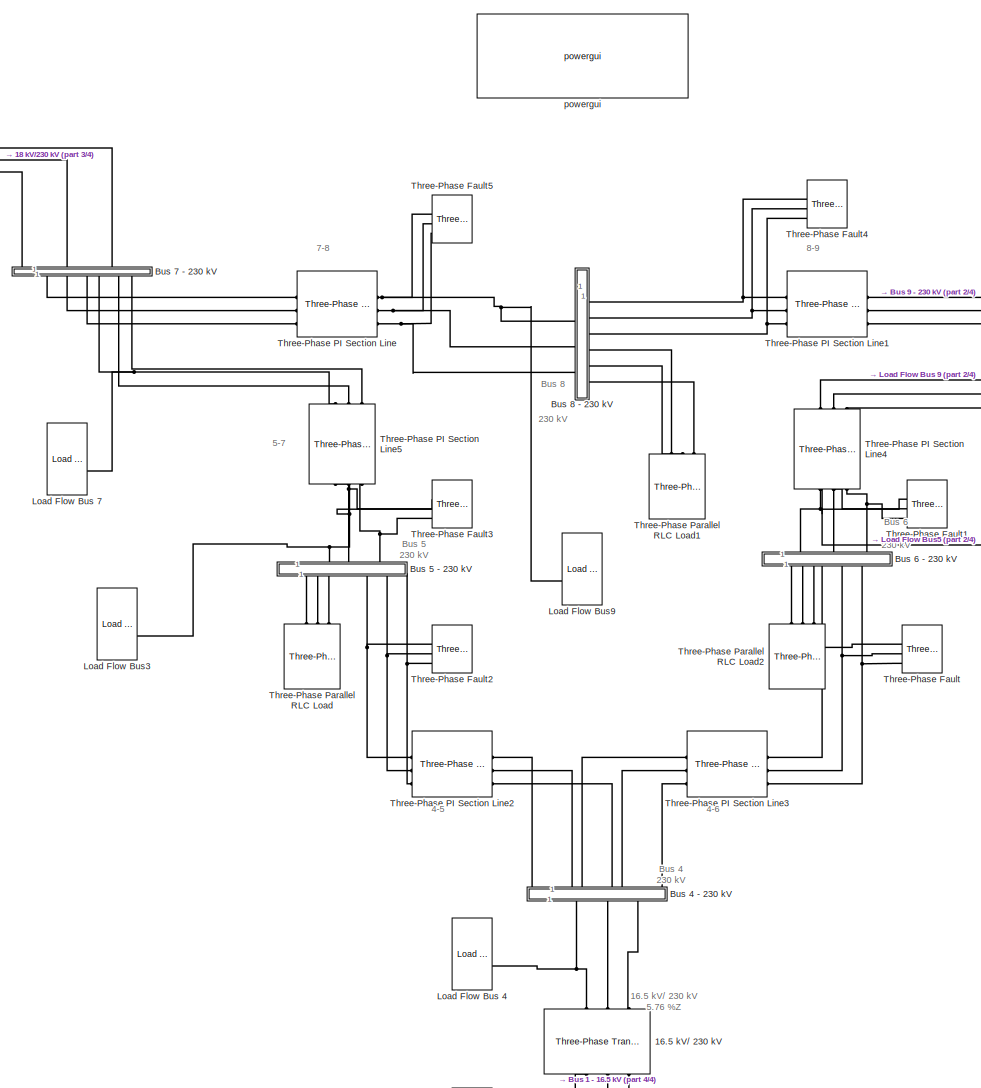
[diagram: root canvas - part 1/4, center side, full height]
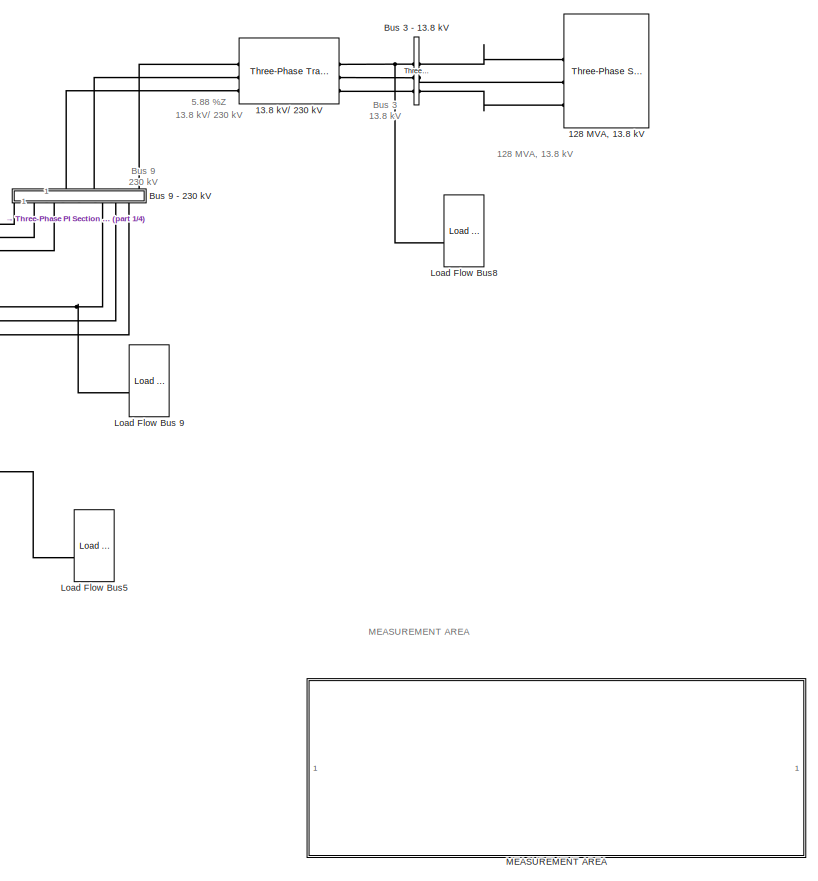
[diagram: root canvas - part 2/4, middle right region]
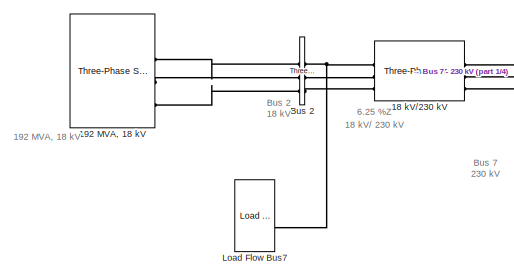
[diagram: root canvas - part 3/4, top left region]
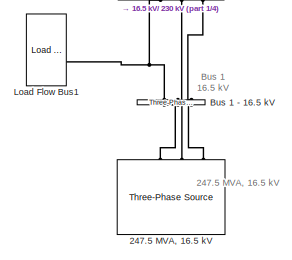
[diagram: root canvas - part 4/4, bottom center region]
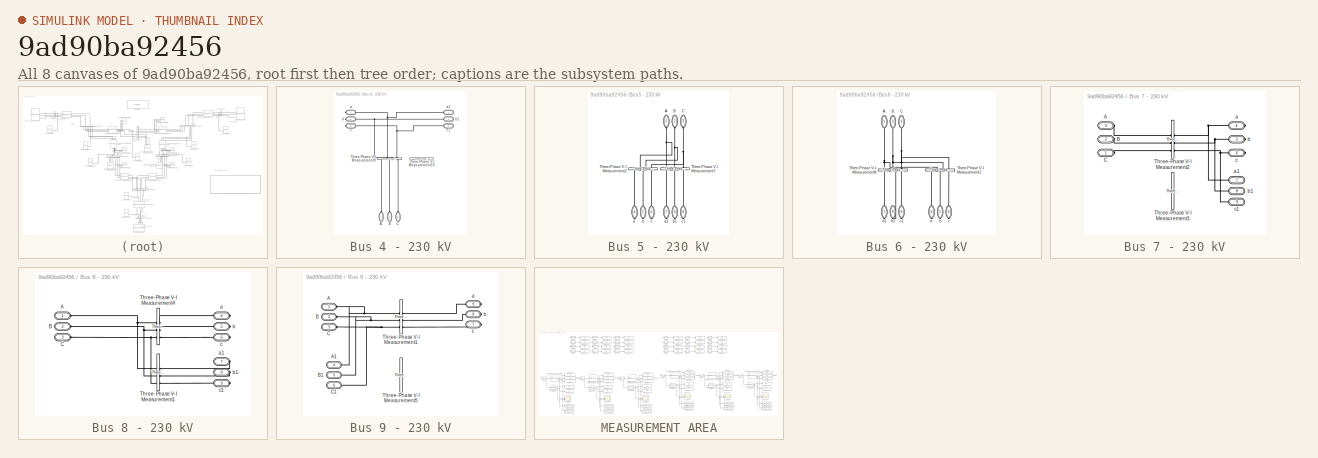
[diagram: thumbnail index - all 8 canvases of the model, root first then tree order]
MODEL slx_9ad90ba92456
KIND model
CONFIG AbsTol = auto
CONFIG EnableMultiTasking = off
CONFIG FixedStep = auto
CONFIG MaxStep = auto
CONFIG MinStep = auto
CONFIG RelTol = 1e-3
CONFIG SampleTimeConstraint = Unconstrained
CONFIG SolverName = VariableStepAuto
CONFIG StartTime = 0.0
CONFIG StopTime = 1
BLOCK [Reference] 128 MVA, 13.8 kV  REF=spsThreePhaseSourceLib/Three-Phase Source
  LibrarySourceBlock = sps_lib/Sources/Three-Phase Source
  SourceBlock = spsThreePhaseSourceLib/Three-Phase Source
  SourceType = Three-Phase Source
BLOCK [Reference] 13.8 kV// 230 kV  REF=spsThreePhaseTransformerTwoWindingsLib/Three-Phase
Transformer
(Two Windings)
  LibrarySourceBlock = sps_lib/Power Grid Elements/Three-Phase\nTransformer\n(Two Windings)
  SourceBlock = spsThreePhaseTransformerTwoWindingsLib/Three-Phase\nTransformer\n(Two Windings)
  SourceType = Three-Phase Transformer (Two Windings)
BLOCK [Reference] 16.5 kV// 230 kV  REF=spsThreePhaseTransformerTwoWindingsLib/Three-Phase
Transformer
(Two Windings)
  LibrarySourceBlock = sps_lib/Power Grid Elements/Three-Phase\nTransformer\n(Two Windings)
  NameLocation = right
  SourceBlock = spsThreePhaseTransformerTwoWindingsLib/Three-Phase\nTransformer\n(Two Windings)
  SourceType = Three-Phase Transformer (Two Windings)
BLOCK [Reference] 18 kV//230 kV  REF=spsThreePhaseTransformerTwoWindingsLib/Three-Phase
Transformer
(Two Windings)
  LibrarySourceBlock = sps_lib/Power Grid Elements/Three-Phase\nTransformer\n(Two Windings)
  SourceBlock = spsThreePhaseTransformerTwoWindingsLib/Three-Phase\nTransformer\n(Two Windings)
  SourceType = Three-Phase Transformer (Two Windings)
BLOCK [Reference] 192 MVA, 18 kV  REF=spsThreePhaseSourceLib/Three-Phase Source
  Description = 60 MVA\n13.8 kV
  LibrarySourceBlock = sps_lib/Sources/Three-Phase Source
  SourceBlock = spsThreePhaseSourceLib/Three-Phase Source
  SourceType = Three-Phase Source
BLOCK [Reference] 247.5 MVA, 16.5 kV  REF=spsThreePhaseSourceLib/Three-Phase Source
  Description = 60 MVA\n13.8 kV
  LibrarySourceBlock = sps_lib/Sources/Three-Phase Source
  NameLocation = right
  SourceBlock = spsThreePhaseSourceLib/Three-Phase Source
  SourceType = Three-Phase Source
BLOCK [Reference] Bus 1 - 16.5 kV  REF=spsThreePhaseVIMeasurementLib/Three-Phase
V-I Measurement
  LibrarySourceBlock = sps_lib/Sensors and Measurements/Three-Phase\nV-I Measurement
  NameLocation = right
  SourceBlock = spsThreePhaseVIMeasurementLib/Three-Phase\nV-I Measurement
  SourceType = Three-Phase VI Measurement
BLOCK [Reference] Bus 2  REF=spsThreePhaseVIMeasurementLib/Three-Phase
V-I Measurement
  LibrarySourceBlock = sps_lib/Sensors and Measurements/Three-Phase\nV-I Measurement
  SourceBlock = spsThreePhaseVIMeasurementLib/Three-Phase\nV-I Measurement
  SourceType = Three-Phase VI Measurement
BLOCK [Reference] Bus 3 - 13.8 kV  REF=spsThreePhaseVIMeasurementLib/Three-Phase
V-I Measurement
  LibrarySourceBlock = sps_lib/Sensors and Measurements/Three-Phase\nV-I Measurement
  SourceBlock = spsThreePhaseVIMeasurementLib/Three-Phase\nV-I Measurement
  SourceType = Three-Phase VI Measurement
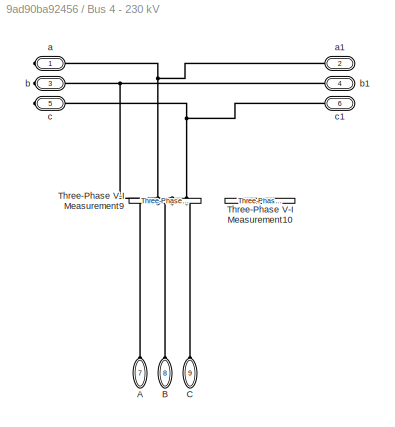
BLOCK [SubSystem] Bus 4 - 230 kV
  NameLocation = right
BLOCK [PMIOPort] Bus 4 - 230 kV/A
  Port = 7
  Side = Left
BLOCK [PMIOPort] Bus 4 - 230 kV/B
  Port = 8
  Side = Left
BLOCK [PMIOPort] Bus 4 - 230 kV/C
  Port = 9
  Side = Left
BLOCK [Reference] Bus 4 - 230 kV/Three-Phase V-I Measurement10  REF=spsThreePhaseVIMeasurementLib/Three-Phase
V-I Measurement
  LibrarySourceBlock = sps_lib/Sensors and Measurements/Three-Phase\nV-I Measurement
  NameLocation = right
  SourceBlock = spsThreePhaseVIMeasurementLib/Three-Phase\nV-I Measurement
  SourceType = Three-Phase VI Measurement
BLOCK [Reference] Bus 4 - 230 kV/Three-Phase V-I Measurement9  REF=spsThreePhaseVIMeasurementLib/Three-Phase
V-I Measurement
  LibrarySourceBlock = sps_lib/Sensors and Measurements/Three-Phase\nV-I Measurement
  NameLocation = right
  SourceBlock = spsThreePhaseVIMeasurementLib/Three-Phase\nV-I Measurement
  SourceType = Three-Phase VI Measurement
BLOCK [PMIOPort] Bus 4 - 230 kV/a
  NameLocation = left
  Side = Right
BLOCK [PMIOPort] Bus 4 - 230 kV/a1
  NameLocation = right
  Port = 2
  Side = Right
BLOCK [PMIOPort] Bus 4 - 230 kV/b
  Port = 3
  Side = Right
BLOCK [PMIOPort] Bus 4 - 230 kV/b1
  Port = 4
  Side = Right
BLOCK [PMIOPort] Bus 4 - 230 kV/c
  NameLocation = left
  Port = 5
  Side = Right
BLOCK [PMIOPort] Bus 4 - 230 kV/c1
  NameLocation = right
  Port = 6
  Side = Right
BLOCK [SubSystem] Bus 5 - 230 kV
  NameLocation = right
BLOCK [PMIOPort] Bus 5 - 230 kV/A
  NameLocation = left
  Side = Left
BLOCK [PMIOPort] Bus 5 - 230 kV/B
  NameLocation = left
  Port = 2
  Side = Left
BLOCK [PMIOPort] Bus 5 - 230 kV/C
  NameLocation = left
  Port = 3
  Side = Left
BLOCK [Reference] Bus 5 - 230 kV/Three-Phase V-I Measurement2  REF=spsThreePhaseVIMeasurementLib/Three-Phase
V-I Measurement
  LibrarySourceBlock = sps_lib/Sensors and Measurements/Three-Phase\nV-I Measurement
  NameLocation = left
  SourceBlock = spsThreePhaseVIMeasurementLib/Three-Phase\nV-I Measurement
  SourceType = Three-Phase VI Measurement
BLOCK [Reference] Bus 5 - 230 kV/Three-Phase V-I Measurement7  REF=spsThreePhaseVIMeasurementLib/Three-Phase
V-I Measurement
  LibrarySourceBlock = sps_lib/Sensors and Measurements/Three-Phase\nV-I Measurement
  NameLocation = left
  SourceBlock = spsThreePhaseVIMeasurementLib/Three-Phase\nV-I Measurement
  SourceType = Three-Phase VI Measurement
BLOCK [PMIOPort] Bus 5 - 230 kV/a
  NameLocation = left
  Port = 4
  Side = Right
BLOCK [PMIOPort] Bus 5 - 230 kV/a1
  NameLocation = left
  Port = 7
  Side = Right
BLOCK [PMIOPort] Bus 5 - 230 kV/b
  NameLocation = left
  Port = 5
  Side = Right
BLOCK [PMIOPort] Bus 5 - 230 kV/b1
  NameLocation = left
  Port = 8
  Side = Right
BLOCK [PMIOPort] Bus 5 - 230 kV/c
  NameLocation = left
  Port = 6
  Side = Right
BLOCK [PMIOPort] Bus 5 - 230 kV/c1
  NameLocation = left
  Port = 9
  Side = Right
BLOCK [SubSystem] Bus 6 - 230 kV
  NameLocation = left
BLOCK [PMIOPort] Bus 6 - 230 kV/A
  NameLocation = left
  Side = Left
BLOCK [PMIOPort] Bus 6 - 230 kV/B
  NameLocation = left
  Port = 2
  Side = Left
BLOCK [PMIOPort] Bus 6 - 230 kV/C
  NameLocation = left
  Port = 3
  Side = Left
BLOCK [Reference] Bus 6 - 230 kV/Three-Phase V-I Measurement1  REF=spsThreePhaseVIMeasurementLib/Three-Phase
V-I Measurement
  LibrarySourceBlock = sps_lib/Sensors and Measurements/Three-Phase\nV-I Measurement
  NameLocation = left
  SourceBlock = spsThreePhaseVIMeasurementLib/Three-Phase\nV-I Measurement
  SourceType = Three-Phase VI Measurement
BLOCK [Reference] Bus 6 - 230 kV/Three-Phase V-I Measurement8  REF=spsThreePhaseVIMeasurementLib/Three-Phase
V-I Measurement
  LibrarySourceBlock = sps_lib/Sensors and Measurements/Three-Phase\nV-I Measurement
  NameLocation = left
  SourceBlock = spsThreePhaseVIMeasurementLib/Three-Phase\nV-I Measurement
  SourceType = Three-Phase VI Measurement
BLOCK [PMIOPort] Bus 6 - 230 kV/a
  NameLocation = left
  Port = 4
  Side = Right
BLOCK [PMIOPort] Bus 6 - 230 kV/a1
  NameLocation = right
  Port = 7
  Side = Right
BLOCK [PMIOPort] Bus 6 - 230 kV/b
  NameLocation = left
  Port = 5
  Side = Right
BLOCK [PMIOPort] Bus 6 - 230 kV/b1
  NameLocation = right
  Port = 8
  Side = Right
BLOCK [PMIOPort] Bus 6 - 230 kV/c
  NameLocation = left
  Port = 6
  Side = Right
BLOCK [PMIOPort] Bus 6 - 230 kV/c1
  NameLocation = right
  Port = 9
  Side = Right
BLOCK [SubSystem] Bus 7 - 230 kV
  NameLocation = left
BLOCK [PMIOPort] Bus 7 - 230 kV/A
  NameLocation = left
  Port = 3
  Side = Left
BLOCK [PMIOPort] Bus 7 - 230 kV/B
  NameLocation = left
  Port = 2
  Side = Left
BLOCK [PMIOPort] Bus 7 - 230 kV/C
  NameLocation = left
  Side = Left
BLOCK [Reference] Bus 7 - 230 kV/Three-Phase V-I Measurement2  REF=spsThreePhaseVIMeasurementLib/Three-Phase
V-I Measurement
  LibrarySourceBlock = sps_lib/Sensors and Measurements/Three-Phase\nV-I Measurement
  SourceBlock = spsThreePhaseVIMeasurementLib/Three-Phase\nV-I Measurement
  SourceType = Three-Phase VI Measurement
BLOCK [Reference] Bus 7 - 230 kV/Three-Phase V-I Measurement3  REF=spsThreePhaseVIMeasurementLib/Three-Phase
V-I Measurement
  LibrarySourceBlock = sps_lib/Sensors and Measurements/Three-Phase\nV-I Measurement
  SourceBlock = spsThreePhaseVIMeasurementLib/Three-Phase\nV-I Measurement
  SourceType = Three-Phase VI Measurement
BLOCK [PMIOPort] Bus 7 - 230 kV/a
  NameLocation = right
  Port = 4
  Side = Right
BLOCK [PMIOPort] Bus 7 - 230 kV/a1
  NameLocation = right
  Port = 7
  Side = Right
BLOCK [PMIOPort] Bus 7 - 230 kV/b
  NameLocation = right
  Port = 5
  Side = Right
BLOCK [PMIOPort] Bus 7 - 230 kV/b1
  NameLocation = right
  Port = 8
  Side = Right
BLOCK [PMIOPort] Bus 7 - 230 kV/c
  NameLocation = right
  Port = 6
  Side = Right
BLOCK [PMIOPort] Bus 7 - 230 kV/c1
  NameLocation = right
  Port = 9
  Side = Right
BLOCK [SubSystem] Bus 8 - 230 kV
BLOCK [PMIOPort] Bus 8 - 230 kV/A
  Side = Left
BLOCK [PMIOPort] Bus 8 - 230 kV/B
  Port = 2
  Side = Left
BLOCK [PMIOPort] Bus 8 - 230 kV/C
  Port = 3
  Side = Left
BLOCK [Reference] Bus 8 - 230 kV/Three-Phase V-I Measurement1  REF=spsThreePhaseVIMeasurementLib/Three-Phase
V-I Measurement
  LibrarySourceBlock = sps_lib/Sensors and Measurements/Three-Phase\nV-I Measurement
  SourceBlock = spsThreePhaseVIMeasurementLib/Three-Phase\nV-I Measurement
  SourceType = Three-Phase VI Measurement
BLOCK [Reference] Bus 8 - 230 kV/Three-Phase V-I Measurement4  REF=spsThreePhaseVIMeasurementLib/Three-Phase
V-I Measurement
  LibrarySourceBlock = sps_lib/Sensors and Measurements/Three-Phase\nV-I Measurement
  SourceBlock = spsThreePhaseVIMeasurementLib/Three-Phase\nV-I Measurement
  SourceType = Three-Phase VI Measurement
BLOCK [PMIOPort] Bus 8 - 230 kV/a
  Port = 4
  Side = Right
BLOCK [PMIOPort] Bus 8 - 230 kV/a1
  Port = 7
  Side = Right
BLOCK [PMIOPort] Bus 8 - 230 kV/b
  Port = 5
  Side = Right
BLOCK [PMIOPort] Bus 8 - 230 kV/b1
  Port = 8
  Side = Right
BLOCK [PMIOPort] Bus 8 - 230 kV/c
  Port = 6
  Side = Right
BLOCK [PMIOPort] Bus 8 - 230 kV/c1
  Port = 9
  Side = Right
BLOCK [SubSystem] Bus 9 - 230 kV
  NameLocation = right
BLOCK [PMIOPort] Bus 9 - 230 kV/A
  NameLocation = left
  Side = Left
BLOCK [PMIOPort] Bus 9 - 230 kV/A1
  NameLocation = left
  Port = 4
  Side = Left
BLOCK [PMIOPort] Bus 9 - 230 kV/B
  NameLocation = left
  Port = 2
  Side = Left
BLOCK [PMIOPort] Bus 9 - 230 kV/B1
  NameLocation = left
  Port = 5
  Side = Left
BLOCK [PMIOPort] Bus 9 - 230 kV/C
  NameLocation = left
  Port = 3
  Side = Left
BLOCK [PMIOPort] Bus 9 - 230 kV/C1
  NameLocation = left
  Port = 6
  Side = Left
BLOCK [Reference] Bus 9 - 230 kV/Three-Phase V-I Measurement1  REF=spsThreePhaseVIMeasurementLib/Three-Phase
V-I Measurement
  LibrarySourceBlock = sps_lib/Sensors and Measurements/Three-Phase\nV-I Measurement
  SourceBlock = spsThreePhaseVIMeasurementLib/Three-Phase\nV-I Measurement
  SourceType = Three-Phase VI Measurement
BLOCK [Reference] Bus 9 - 230 kV/Three-Phase V-I Measurement5  REF=spsThreePhaseVIMeasurementLib/Three-Phase
V-I Measurement
  LibrarySourceBlock = sps_lib/Sensors and Measurements/Three-Phase\nV-I Measurement
  SourceBlock = spsThreePhaseVIMeasurementLib/Three-Phase\nV-I Measurement
  SourceType = Three-Phase VI Measurement
BLOCK [PMIOPort] Bus 9 - 230 kV/a
  NameLocation = right
  Port = 9
  Side = Right
BLOCK [PMIOPort] Bus 9 - 230 kV/b
  NameLocation = right
  Port = 8
  Side = Right
BLOCK [PMIOPort] Bus 9 - 230 kV/c
  NameLocation = right
  Port = 7
  Side = Right
BLOCK [Reference] Load Flow Bus 4  REF=spsLoadFlowBusLib/Load Flow Bus
  AttributesFormatString = %<ID>\n%<Vbase>V\n%<VLF>pu\n%<angleLF>deg.
  LibrarySourceBlock = sps_lib/Utilities/Load Flow Bus
  SourceBlock = spsLoadFlowBusLib/Load Flow Bus
  SourceType = Load Flow Bus
BLOCK [Reference] Load Flow Bus 7  REF=spsLoadFlowBusLib/Load Flow Bus
  AttributesFormatString = %<ID>\n%<Vbase>V\n%<VLF>pu\n%<angleLF>deg.
  LibrarySourceBlock = sps_lib/Utilities/Load Flow Bus
  SourceBlock = spsLoadFlowBusLib/Load Flow Bus
  SourceType = Load Flow Bus
BLOCK [Reference] Load Flow Bus 9  REF=spsLoadFlowBusLib/Load Flow Bus
  AttributesFormatString = %<ID>\n%<Vbase>V\n%<VLF>pu\n%<angleLF>deg.
  LibrarySourceBlock = sps_lib/Utilities/Load Flow Bus
  SourceBlock = spsLoadFlowBusLib/Load Flow Bus
  SourceType = Load Flow Bus
BLOCK [Reference] Load Flow Bus1  REF=spsLoadFlowBusLib/Load Flow Bus
  AttributesFormatString = %<ID>\n%<Vbase>V\n%<VLF>pu\n%<angleLF>deg.
  LibrarySourceBlock = sps_lib/Utilities/Load Flow Bus
  SourceBlock = spsLoadFlowBusLib/Load Flow Bus
  SourceType = Load Flow Bus
BLOCK [Reference] Load Flow Bus3  REF=spsLoadFlowBusLib/Load Flow Bus
  AttributesFormatString = %<ID>\n%<Vbase>V\n%<VLF>pu\n%<angleLF>deg.
  LibrarySourceBlock = sps_lib/Utilities/Load Flow Bus
  SourceBlock = spsLoadFlowBusLib/Load Flow Bus
  SourceType = Load Flow Bus
BLOCK [Reference] Load Flow Bus5  REF=spsLoadFlowBusLib/Load Flow Bus
  AttributesFormatString = %<ID>\n%<Vbase>V\n%<VLF>pu\n%<angleLF>deg.
  LibrarySourceBlock = sps_lib/Utilities/Load Flow Bus
  SourceBlock = spsLoadFlowBusLib/Load Flow Bus
  SourceType = Load Flow Bus
BLOCK [Reference] Load Flow Bus7  REF=spsLoadFlowBusLib/Load Flow Bus
  AttributesFormatString = %<ID>\n%<Vbase>V\n%<VLF>pu\n%<angleLF>deg.
  LibrarySourceBlock = sps_lib/Utilities/Load Flow Bus
  SourceBlock = spsLoadFlowBusLib/Load Flow Bus
  SourceType = Load Flow Bus
BLOCK [Reference] Load Flow Bus8  REF=spsLoadFlowBusLib/Load Flow Bus
  AttributesFormatString = %<ID>\n%<Vbase>V\n%<VLF>pu\n%<angleLF>deg.
  LibrarySourceBlock = sps_lib/Utilities/Load Flow Bus
  SourceBlock = spsLoadFlowBusLib/Load Flow Bus
  SourceType = Load Flow Bus
BLOCK [Reference] Load Flow Bus9  REF=spsLoadFlowBusLib/Load Flow Bus
  AttributesFormatString = %<ID>\n%<Vbase>V\n%<VLF>pu\n%<angleLF>deg.
  LibrarySourceBlock = sps_lib/Utilities/Load Flow Bus
  SourceBlock = spsLoadFlowBusLib/Load Flow Bus
  SourceType = Load Flow Bus
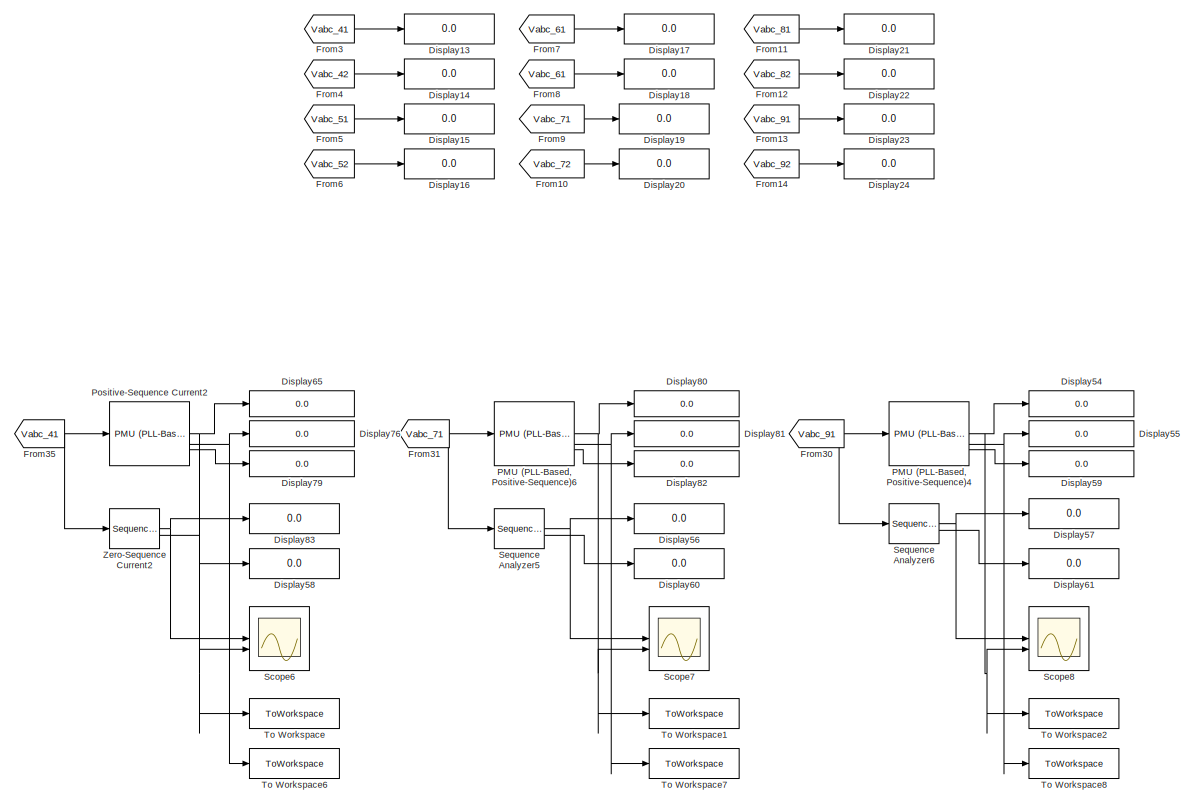
[diagram: MEASUREMENT AREA - part 1/2, left side, full height]
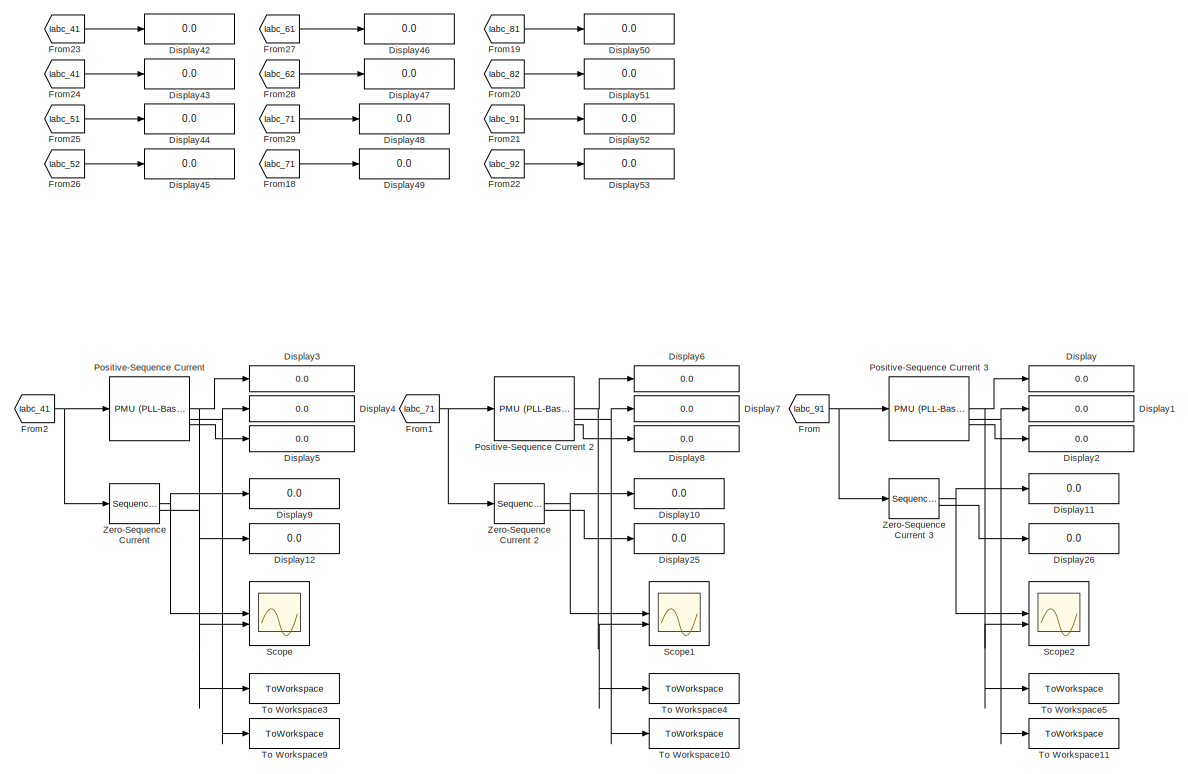
[diagram: MEASUREMENT AREA - part 2/2, right side, full height]
BLOCK [SubSystem] MEASUREMENT AREA
BLOCK [Display] MEASUREMENT AREA/Display
  Decimation = 1
BLOCK [Display] MEASUREMENT AREA/Display1
  Decimation = 1
BLOCK [Display] MEASUREMENT AREA/Display10
  Decimation = 1
BLOCK [Display] MEASUREMENT AREA/Display11
  Decimation = 1
BLOCK [Display] MEASUREMENT AREA/Display12
  Decimation = 1
BLOCK [Display] MEASUREMENT AREA/Display13
  Decimation = 1
BLOCK [Display] MEASUREMENT AREA/Display14
  Decimation = 1
BLOCK [Display] MEASUREMENT AREA/Display15
  Decimation = 1
BLOCK [Display] MEASUREMENT AREA/Display16
  Decimation = 1
BLOCK [Display] MEASUREMENT AREA/Display17
  Decimation = 1
BLOCK [Display] MEASUREMENT AREA/Display18
  Decimation = 1
BLOCK [Display] MEASUREMENT AREA/Display19
  Decimation = 1
BLOCK [Display] MEASUREMENT AREA/Display2
  Decimation = 1
BLOCK [Display] MEASUREMENT AREA/Display20
  Decimation = 1
BLOCK [Display] MEASUREMENT AREA/Display21
  Decimation = 1
BLOCK [Display] MEASUREMENT AREA/Display22
  Decimation = 1
BLOCK [Display] MEASUREMENT AREA/Display23
  Decimation = 1
BLOCK [Display] MEASUREMENT AREA/Display24
  Decimation = 1
BLOCK [Display] MEASUREMENT AREA/Display25
  Decimation = 1
BLOCK [Display] MEASUREMENT AREA/Display26
  Decimation = 1
BLOCK [Display] MEASUREMENT AREA/Display3
  Decimation = 1
BLOCK [Display] MEASUREMENT AREA/Display4
  Decimation = 1
BLOCK [Display] MEASUREMENT AREA/Display42
  Decimation = 1
BLOCK [Display] MEASUREMENT AREA/Display43
  Decimation = 1
BLOCK [Display] MEASUREMENT AREA/Display44
  Decimation = 1
BLOCK [Display] MEASUREMENT AREA/Display45
  Decimation = 1
BLOCK [Display] MEASUREMENT AREA/Display46
  Decimation = 1
BLOCK [Display] MEASUREMENT AREA/Display47
  Decimation = 1
BLOCK [Display] MEASUREMENT AREA/Display48
  Decimation = 1
BLOCK [Display] MEASUREMENT AREA/Display49
  Decimation = 1
BLOCK [Display] MEASUREMENT AREA/Display5
  Decimation = 1
BLOCK [Display] MEASUREMENT AREA/Display50
  Decimation = 1
BLOCK [Display] MEASUREMENT AREA/Display51
  Decimation = 1
BLOCK [Display] MEASUREMENT AREA/Display52
  Decimation = 1
BLOCK [Display] MEASUREMENT AREA/Display53
  Decimation = 1
BLOCK [Display] MEASUREMENT AREA/Display54
  Decimation = 1
BLOCK [Display] MEASUREMENT AREA/Display55
  Decimation = 1
BLOCK [Display] MEASUREMENT AREA/Display56
  Decimation = 1
BLOCK [Display] MEASUREMENT AREA/Display57
  Decimation = 1
BLOCK [Display] MEASUREMENT AREA/Display58
  Decimation = 1
BLOCK [Display] MEASUREMENT AREA/Display59
  Decimation = 1
BLOCK [Display] MEASUREMENT AREA/Display6
  Decimation = 1
BLOCK [Display] MEASUREMENT AREA/Display60
  Decimation = 1
BLOCK [Display] MEASUREMENT AREA/Display61
  Decimation = 1
BLOCK [Display] MEASUREMENT AREA/Display65
  Decimation = 1
BLOCK [Display] MEASUREMENT AREA/Display7
  Decimation = 1
BLOCK [Display] MEASUREMENT AREA/Display76
  Decimation = 1
BLOCK [Display] MEASUREMENT AREA/Display79
  Decimation = 1
BLOCK [Display] MEASUREMENT AREA/Display8
  Decimation = 1
BLOCK [Display] MEASUREMENT AREA/Display80
  Decimation = 1
BLOCK [Display] MEASUREMENT AREA/Display81
  Decimation = 1
BLOCK [Display] MEASUREMENT AREA/Display82
  Decimation = 1
BLOCK [Display] MEASUREMENT AREA/Display83
  Decimation = 1
BLOCK [Display] MEASUREMENT AREA/Display9
  Decimation = 1
BLOCK [From] MEASUREMENT AREA/From
  GotoTag = Iabc_91
  TagVisibility = global
BLOCK [From] MEASUREMENT AREA/From1
  GotoTag = Iabc_71
  TagVisibility = global
BLOCK [From] MEASUREMENT AREA/From10
  GotoTag = Vabc_72
  TagVisibility = global
BLOCK [From] MEASUREMENT AREA/From11
  GotoTag = Vabc_81
  TagVisibility = global
BLOCK [From] MEASUREMENT AREA/From12
  GotoTag = Vabc_82
  TagVisibility = global
BLOCK [From] MEASUREMENT AREA/From13
  GotoTag = Vabc_91
  TagVisibility = global
BLOCK [From] MEASUREMENT AREA/From14
  GotoTag = Vabc_92
  TagVisibility = global
BLOCK [From] MEASUREMENT AREA/From18
  GotoTag = Iabc_71
  TagVisibility = global
BLOCK [From] MEASUREMENT AREA/From19
  GotoTag = Iabc_81
  TagVisibility = global
BLOCK [From] MEASUREMENT AREA/From2
  GotoTag = Iabc_41
  TagVisibility = global
BLOCK [From] MEASUREMENT AREA/From20
  GotoTag = Iabc_82
  TagVisibility = global
BLOCK [From] MEASUREMENT AREA/From21
  GotoTag = Iabc_91
  TagVisibility = global
BLOCK [From] MEASUREMENT AREA/From22
  GotoTag = Iabc_92
  TagVisibility = global
BLOCK [From] MEASUREMENT AREA/From23
  GotoTag = Iabc_41
  TagVisibility = global
BLOCK [From] MEASUREMENT AREA/From24
  GotoTag = Iabc_41
  TagVisibility = global
BLOCK [From] MEASUREMENT AREA/From25
  GotoTag = Iabc_51
  TagVisibility = global
BLOCK [From] MEASUREMENT AREA/From26
  GotoTag = Iabc_52
  TagVisibility = global
BLOCK [From] MEASUREMENT AREA/From27
  GotoTag = Iabc_61
  TagVisibility = global
BLOCK [From] MEASUREMENT AREA/From28
  GotoTag = Iabc_62
  TagVisibility = global
BLOCK [From] MEASUREMENT AREA/From29
  GotoTag = Iabc_71
  TagVisibility = global
BLOCK [From] MEASUREMENT AREA/From3
  GotoTag = Vabc_41
  TagVisibility = global
BLOCK [From] MEASUREMENT AREA/From30
  GotoTag = Vabc_91
  TagVisibility = global
BLOCK [From] MEASUREMENT AREA/From31
  GotoTag = Vabc_71
  TagVisibility = global
BLOCK [From] MEASUREMENT AREA/From35
  GotoTag = Vabc_41
  TagVisibility = global
BLOCK [From] MEASUREMENT AREA/From4
  GotoTag = Vabc_42
  TagVisibility = global
BLOCK [From] MEASUREMENT AREA/From5
  GotoTag = Vabc_51
  TagVisibility = global
BLOCK [From] MEASUREMENT AREA/From6
  GotoTag = Vabc_52
  TagVisibility = global
BLOCK [From] MEASUREMENT AREA/From7
  GotoTag = Vabc_61
  TagVisibility = global
BLOCK [From] MEASUREMENT AREA/From8
  GotoTag = Vabc_61
  TagVisibility = global
BLOCK [From] MEASUREMENT AREA/From9
  GotoTag = Vabc_71
  TagVisibility = global
BLOCK [Reference] MEASUREMENT AREA/PMU (PLL-Based, Positive-Sequence)4  REF=spsPMUPLLBasedPositiveSequenceLib/PMU
(PLL-Based,
Positive-Sequence)
  LibrarySourceBlock = sps_lib/Sensors and Measurements/PMU\n(PLL-Based,\nPositive-Sequence)
  SourceBlock = spsPMUPLLBasedPositiveSequenceLib/PMU\n(PLL-Based,\nPositive-Sequence)
  SourceType = PMU (PLL-Based, Positive-Sequence)
BLOCK [Reference] MEASUREMENT AREA/PMU (PLL-Based, Positive-Sequence)6  REF=spsPMUPLLBasedPositiveSequenceLib/PMU
(PLL-Based,
Positive-Sequence)
  LibrarySourceBlock = sps_lib/Sensors and Measurements/PMU\n(PLL-Based,\nPositive-Sequence)
  SourceBlock = spsPMUPLLBasedPositiveSequenceLib/PMU\n(PLL-Based,\nPositive-Sequence)
  SourceType = PMU (PLL-Based, Positive-Sequence)
BLOCK [Reference] MEASUREMENT AREA/Positive-Sequence Current  REF=spsPMUPLLBasedPositiveSequenceLib/PMU
(PLL-Based,
Positive-Sequence)
  LibrarySourceBlock = sps_lib/Sensors and Measurements/PMU\n(PLL-Based,\nPositive-Sequence)
  SourceBlock = spsPMUPLLBasedPositiveSequenceLib/PMU\n(PLL-Based,\nPositive-Sequence)
  SourceType = PMU (PLL-Based, Positive-Sequence)
BLOCK [Reference] MEASUREMENT AREA/Positive-Sequence Current 2  REF=spsPMUPLLBasedPositiveSequenceLib/PMU
(PLL-Based,
Positive-Sequence)
  LibrarySourceBlock = sps_lib/Sensors and Measurements/PMU\n(PLL-Based,\nPositive-Sequence)
  SourceBlock = spsPMUPLLBasedPositiveSequenceLib/PMU\n(PLL-Based,\nPositive-Sequence)
  SourceType = PMU (PLL-Based, Positive-Sequence)
BLOCK [Reference] MEASUREMENT AREA/Positive-Sequence Current 3  REF=spsPMUPLLBasedPositiveSequenceLib/PMU
(PLL-Based,
Positive-Sequence)
  LibrarySourceBlock = sps_lib/Sensors and Measurements/PMU\n(PLL-Based,\nPositive-Sequence)
  SourceBlock = spsPMUPLLBasedPositiveSequenceLib/PMU\n(PLL-Based,\nPositive-Sequence)
  SourceType = PMU (PLL-Based, Positive-Sequence)
BLOCK [Reference] MEASUREMENT AREA/Positive-Sequence Current2  REF=spsPMUPLLBasedPositiveSequenceLib/PMU
(PLL-Based,
Positive-Sequence)
  LibrarySourceBlock = sps_lib/Sensors and Measurements/PMU\n(PLL-Based,\nPositive-Sequence)
  SourceBlock = spsPMUPLLBasedPositiveSequenceLib/PMU\n(PLL-Based,\nPositive-Sequence)
  SourceType = PMU (PLL-Based, Positive-Sequence)
BLOCK [Scope] MEASUREMENT AREA/Scope
  Floating = off
  NumInputPorts = 2
  ScopeSpecificationString = Simulink.scopes.TimeScopeBlockCfg('CurrentConfiguration', extmgr.ConfigurationSet(extmgr.Configuration('Core','General UI',true,'FigureColor',[1 1 1]),extmgr.Configuration('Core','Source UI',true),extmgr.Configuration('Sources','WiredSimulink',true),extmgr.Configuration('Visuals','Time Domain',true,'SerializedDisplays',{struct('MinYLimReal','-0.125','MaxYLimReal','1.125','YLabelReal','','MinYLimMa...<+1741ch>
BLOCK [Scope] MEASUREMENT AREA/Scope1
  Floating = off
  NumInputPorts = 2
  ScopeSpecificationString = Simulink.scopes.TimeScopeBlockCfg('CurrentConfiguration', extmgr.ConfigurationSet(extmgr.Configuration('Core','General UI',true,'FigureColor',[1 1 1]),extmgr.Configuration('Core','Source UI',true),extmgr.Configuration('Sources','WiredSimulink',true,'DataLoggingVariableName','ScopeData1'),extmgr.Configuration('Visuals','Time Domain',true,'SerializedDisplays',{struct('MinYLimReal','-0.24344','MaxYLi...<+1794ch>
BLOCK [Scope] MEASUREMENT AREA/Scope2
  Floating = off
  NumInputPorts = 2
  ScopeSpecificationString = Simulink.scopes.TimeScopeBlockCfg('CurrentConfiguration', extmgr.ConfigurationSet(extmgr.Configuration('Core','General UI',true,'FigureColor',[1 1 1]),extmgr.Configuration('Core','Source UI',true),extmgr.Configuration('Sources','WiredSimulink',true,'DataLoggingVariableName','ScopeData2'),extmgr.Configuration('Visuals','Time Domain',true,'SerializedDisplays',{struct('MinYLimReal','-0.15899','MaxYLi...<+1796ch>
BLOCK [Scope] MEASUREMENT AREA/Scope6
  Floating = off
  NumInputPorts = 2
  ScopeSpecificationString = Simulink.scopes.TimeScopeBlockCfg('CurrentConfiguration', extmgr.ConfigurationSet(extmgr.Configuration('Core','General UI',true,'FigureColor',[1 1 1]),extmgr.Configuration('Core','Source UI',true),extmgr.Configuration('Sources','WiredSimulink',true,'DataLoggingVariableName','ScopeData8'),extmgr.Configuration('Visuals','Time Domain',true,'SerializedDisplays',{struct('MinYLimReal','-0.125','MaxYLimR...<+1747ch>
BLOCK [Scope] MEASUREMENT AREA/Scope7
  Floating = off
  NumInputPorts = 2
  ScopeSpecificationString = Simulink.scopes.TimeScopeBlockCfg('CurrentConfiguration', extmgr.ConfigurationSet(extmgr.Configuration('Core','General UI',true,'FigureColor',[1 1 1]),extmgr.Configuration('Core','Source UI',true),extmgr.Configuration('Sources','WiredSimulink',true,'DataLoggingVariableName','ScopeData9'),extmgr.Configuration('Visuals','Time Domain',true,'SerializedDisplays',{struct('MinYLimReal','-0.125','MaxYLimR...<+1747ch>
BLOCK [Scope] MEASUREMENT AREA/Scope8
  Floating = off
  NumInputPorts = 2
  ScopeSpecificationString = Simulink.scopes.TimeScopeBlockCfg('CurrentConfiguration', extmgr.ConfigurationSet(extmgr.Configuration('Core','General UI',true,'FigureColor',[1 1 1]),extmgr.Configuration('Core','Source UI',true),extmgr.Configuration('Sources','WiredSimulink',true,'DataLoggingVariableName','ScopeData10'),extmgr.Configuration('Visuals','Time Domain',true,'SerializedDisplays',{struct('MinYLimReal','-0.125','MaxYLim...<+1748ch>
BLOCK [Reference] MEASUREMENT AREA/Sequence Analyzer5  REF=spsSequenceAnalyzerLib/Sequence Analyzer
  LibrarySourceBlock = sps_lib/Sensors and Measurements/Sequence Analyzer
  SourceBlock = spsSequenceAnalyzerLib/Sequence Analyzer
  SourceType = Sequence Analyzer
BLOCK [Reference] MEASUREMENT AREA/Sequence Analyzer6  REF=spsSequenceAnalyzerLib/Sequence Analyzer
  LibrarySourceBlock = sps_lib/Sensors and Measurements/Sequence Analyzer
  SourceBlock = spsSequenceAnalyzerLib/Sequence Analyzer
  SourceType = Sequence Analyzer
BLOCK [ToWorkspace] MEASUREMENT AREA/To Workspace
  Decimation = 3
  FixptAsFi = on
  MaxDataPoints = inf
  SampleTime = 0.1
  SaveFormat = Timeseries
  VariableName = Vmag4
BLOCK [ToWorkspace] MEASUREMENT AREA/To Workspace1
  Decimation = 3
  FixptAsFi = on
  MaxDataPoints = inf
  SampleTime = 0.1
  SaveFormat = Timeseries
  VariableName = Vmag7
BLOCK [ToWorkspace] MEASUREMENT AREA/To Workspace10
  Decimation = 3
  FixptAsFi = on
  MaxDataPoints = inf
  SampleTime = 0.1
  SaveFormat = Timeseries
  VariableName = Iang7
BLOCK [ToWorkspace] MEASUREMENT AREA/To Workspace11
  Decimation = 3
  FixptAsFi = on
  MaxDataPoints = inf
  SampleTime = 0.1
  SaveFormat = Timeseries
  VariableName = Iang9
BLOCK [ToWorkspace] MEASUREMENT AREA/To Workspace2
  Decimation = 3
  FixptAsFi = on
  MaxDataPoints = inf
  SampleTime = 0.1
  SaveFormat = Timeseries
  VariableName = Vmag9
BLOCK [ToWorkspace] MEASUREMENT AREA/To Workspace3
  Decimation = 3
  FixptAsFi = on
  MaxDataPoints = inf
  SampleTime = 0.1
  SaveFormat = Timeseries
  VariableName = Imag4
BLOCK [ToWorkspace] MEASUREMENT AREA/To Workspace4
  Decimation = 3
  FixptAsFi = on
  MaxDataPoints = inf
  SampleTime = 0.1
  SaveFormat = Timeseries
  VariableName = Imag7
BLOCK [ToWorkspace] MEASUREMENT AREA/To Workspace5
  Decimation = 3
  FixptAsFi = on
  MaxDataPoints = inf
  SampleTime = 0.1
  SaveFormat = Timeseries
  VariableName = Imag9
BLOCK [ToWorkspace] MEASUREMENT AREA/To Workspace6
  Decimation = 3
  FixptAsFi = on
  MaxDataPoints = inf
  SampleTime = 0.1
  SaveFormat = Timeseries
  VariableName = Vang4
BLOCK [ToWorkspace] MEASUREMENT AREA/To Workspace7
  Decimation = 3
  FixptAsFi = on
  MaxDataPoints = inf
  SampleTime = 0.1
  SaveFormat = Timeseries
  VariableName = Vang7
BLOCK [ToWorkspace] MEASUREMENT AREA/To Workspace8
  Decimation = 3
  FixptAsFi = on
  MaxDataPoints = inf
  SampleTime = 0.1
  SaveFormat = Timeseries
  VariableName = Vang9
BLOCK [ToWorkspace] MEASUREMENT AREA/To Workspace9
  Decimation = 3
  FixptAsFi = on
  MaxDataPoints = inf
  SampleTime = 0.1
  SaveFormat = Timeseries
  VariableName = Iang4
BLOCK [Reference] MEASUREMENT AREA/Zero-Sequence Current  REF=spsSequenceAnalyzerLib/Sequence Analyzer
  LibrarySourceBlock = sps_lib/Sensors and Measurements/Sequence Analyzer
  SourceBlock = spsSequenceAnalyzerLib/Sequence Analyzer
  SourceType = Sequence Analyzer
BLOCK [Reference] MEASUREMENT AREA/Zero-Sequence Current 2  REF=spsSequenceAnalyzerLib/Sequence Analyzer
  LibrarySourceBlock = sps_lib/Sensors and Measurements/Sequence Analyzer
  SourceBlock = spsSequenceAnalyzerLib/Sequence Analyzer
  SourceType = Sequence Analyzer
BLOCK [Reference] MEASUREMENT AREA/Zero-Sequence Current 3  REF=spsSequenceAnalyzerLib/Sequence Analyzer
  LibrarySourceBlock = sps_lib/Sensors and Measurements/Sequence Analyzer
  SourceBlock = spsSequenceAnalyzerLib/Sequence Analyzer
  SourceType = Sequence Analyzer
BLOCK [Reference] MEASUREMENT AREA/Zero-Sequence Current2  REF=spsSequenceAnalyzerLib/Sequence Analyzer
  LibrarySourceBlock = sps_lib/Sensors and Measurements/Sequence Analyzer
  SourceBlock = spsSequenceAnalyzerLib/Sequence Analyzer
  SourceType = Sequence Analyzer
BLOCK [Reference] Three-Phase Fault  REF=spsThreePhaseFaultLib/Three-Phase Fault
  Commented = on
  LibrarySourceBlock = sps_lib/Power Grid Elements/Three-Phase Fault
  SourceBlock = spsThreePhaseFaultLib/Three-Phase Fault
  SourceType = Three-Phase Fault
BLOCK [Reference] Three-Phase Fault1  REF=spsThreePhaseFaultLib/Three-Phase Fault
  Commented = on
  LibrarySourceBlock = sps_lib/Power Grid Elements/Three-Phase Fault
  SourceBlock = spsThreePhaseFaultLib/Three-Phase Fault
  SourceType = Three-Phase Fault
BLOCK [Reference] Three-Phase Fault2  REF=spsThreePhaseFaultLib/Three-Phase Fault
  Commented = on
  LibrarySourceBlock = sps_lib/Power Grid Elements/Three-Phase Fault
  SourceBlock = spsThreePhaseFaultLib/Three-Phase Fault
  SourceType = Three-Phase Fault
BLOCK [Reference] Three-Phase Fault3  REF=spsThreePhaseFaultLib/Three-Phase Fault
  Commented = on
  LibrarySourceBlock = sps_lib/Power Grid Elements/Three-Phase Fault
  SourceBlock = spsThreePhaseFaultLib/Three-Phase Fault
  SourceType = Three-Phase Fault
BLOCK [Reference] Three-Phase Fault4  REF=spsThreePhaseFaultLib/Three-Phase Fault
  Commented = on
  LibrarySourceBlock = sps_lib/Power Grid Elements/Three-Phase Fault
  SourceBlock = spsThreePhaseFaultLib/Three-Phase Fault
  SourceType = Three-Phase Fault
BLOCK [Reference] Three-Phase Fault5  REF=spsThreePhaseFaultLib/Three-Phase Fault
  LibrarySourceBlock = sps_lib/Power Grid Elements/Three-Phase Fault
  SourceBlock = spsThreePhaseFaultLib/Three-Phase Fault
  SourceType = Three-Phase Fault
BLOCK [Reference] Three-Phase PI Section Line  REF=spsThreePhasePISectionLineLib/Three-Phase
PI Section Line
  AttributesFormatString = \n
  LibrarySourceBlock = sps_lib/Power Grid Elements/Three-Phase\nPI Section Line
  SourceBlock = spsThreePhasePISectionLineLib/Three-Phase\nPI Section Line
  SourceType = Three-Phase PI Section Line
BLOCK [Reference] Three-Phase PI Section Line1  REF=spsThreePhasePISectionLineLib/Three-Phase
PI Section Line
  AttributesFormatString = \n
  LibrarySourceBlock = sps_lib/Power Grid Elements/Three-Phase\nPI Section Line
  SourceBlock = spsThreePhasePISectionLineLib/Three-Phase\nPI Section Line
  SourceType = Three-Phase PI Section Line
BLOCK [Reference] Three-Phase PI Section Line2  REF=spsThreePhasePISectionLineLib/Three-Phase
PI Section Line
  AttributesFormatString = \n
  LibrarySourceBlock = sps_lib/Power Grid Elements/Three-Phase\nPI Section Line
  SourceBlock = spsThreePhasePISectionLineLib/Three-Phase\nPI Section Line
  SourceType = Three-Phase PI Section Line
BLOCK [Reference] Three-Phase PI Section Line3  REF=spsThreePhasePISectionLineLib/Three-Phase
PI Section Line
  AttributesFormatString = \n
  LibrarySourceBlock = sps_lib/Power Grid Elements/Three-Phase\nPI Section Line
  SourceBlock = spsThreePhasePISectionLineLib/Three-Phase\nPI Section Line
  SourceType = Three-Phase PI Section Line
BLOCK [Reference] Three-Phase PI Section Line4  REF=spsThreePhasePISectionLineLib/Three-Phase
PI Section Line
  AttributesFormatString = \n
  LibrarySourceBlock = sps_lib/Power Grid Elements/Three-Phase\nPI Section Line
  NameLocation = left
  SourceBlock = spsThreePhasePISectionLineLib/Three-Phase\nPI Section Line
  SourceType = Three-Phase PI Section Line
BLOCK [Reference] Three-Phase PI Section Line5  REF=spsThreePhasePISectionLineLib/Three-Phase
PI Section Line
  AttributesFormatString = \n
  LibrarySourceBlock = sps_lib/Power Grid Elements/Three-Phase\nPI Section Line
  NameLocation = right
  SourceBlock = spsThreePhasePISectionLineLib/Three-Phase\nPI Section Line
  SourceType = Three-Phase PI Section Line
BLOCK [Reference] Three-Phase Parallel RLC Load  REF=spsThreePhaseParallelRLCLoadLib/Three-Phase
Parallel RLC Load
  AttributesFormatString = \n
  LibrarySourceBlock = sps_lib/Passives/Three-Phase\nParallel RLC Load
  SourceBlock = spsThreePhaseParallelRLCLoadLib/Three-Phase\nParallel RLC Load
  SourceType = Three-Phase Parallel RLC Load
BLOCK [Reference] Three-Phase Parallel RLC Load1  REF=spsThreePhaseParallelRLCLoadLib/Three-Phase
Parallel RLC Load
  AttributesFormatString = \n
  LibrarySourceBlock = sps_lib/Passives/Three-Phase\nParallel RLC Load
  SourceBlock = spsThreePhaseParallelRLCLoadLib/Three-Phase\nParallel RLC Load
  SourceType = Three-Phase Parallel RLC Load
BLOCK [Reference] Three-Phase Parallel RLC Load2  REF=spsThreePhaseParallelRLCLoadLib/Three-Phase
Parallel RLC Load
  AttributesFormatString = \n
  LibrarySourceBlock = sps_lib/Passives/Three-Phase\nParallel RLC Load
  SourceBlock = spsThreePhaseParallelRLCLoadLib/Three-Phase\nParallel RLC Load
  SourceType = Three-Phase Parallel RLC Load
BLOCK [Reference] powergui  REF=sps_lib/powergui
  LibrarySourceBlock = sps_lib/powergui
  Priority = 1
  SourceBlock = sps_lib/powergui
  SourceType = PSB option menu block
ANNOTATION (root): MEASUREMENT AREA
ANNOTATION (root): 13.8 kV/ 230 kV 5.88 %Z
ANNOTATION (root): 16.5 kV/ 230 kV 5.76 %Z
ANNOTATION (root): 18 kV/ 230 kV 6.25 %Z
ANNOTATION (root): Bus 1 16.5 kV
ANNOTATION (root): Bus 2 18 kV
ANNOTATION (root): Bus 3 13.8 kV
ANNOTATION (root): Bus 4 230 kV
ANNOTATION (root): Bus 5 230 kV
ANNOTATION (root): Bus 6 230 kV
ANNOTATION (root): Bus 7 230 kV
ANNOTATION (root): Bus 8 230 kV
ANNOTATION (root): Bus 9 230 kV
ANNOTATION (root): 128 MVA, 13.8 kV
ANNOTATION (root): 192 MVA, 18 kV
ANNOTATION (root): 247.5 MVA, 16.5 kV
ANNOTATION (root): 4-5
ANNOTATION (root): 4-6
ANNOTATION (root): 5-7
ANNOTATION (root): 7-8
ANNOTATION (root): 8-9
LINE MEASUREMENT AREA/From10:1 -> MEASUREMENT AREA/Display20:1
LINE MEASUREMENT AREA/From11:1 -> MEASUREMENT AREA/Display21:1
LINE MEASUREMENT AREA/From12:1 -> MEASUREMENT AREA/Display22:1
LINE MEASUREMENT AREA/From13:1 -> MEASUREMENT AREA/Display23:1
LINE MEASUREMENT AREA/From14:1 -> MEASUREMENT AREA/Display24:1
LINE MEASUREMENT AREA/From18:1 -> MEASUREMENT AREA/Display49:1
LINE MEASUREMENT AREA/From19:1 -> MEASUREMENT AREA/Display50:1
NET MEASUREMENT AREA/From1:1 -> MEASUREMENT AREA/Positive-Sequence Current 2:1, MEASUREMENT AREA/Zero-Sequence Current 2:1
LINE MEASUREMENT AREA/From20:1 -> MEASUREMENT AREA/Display51:1
LINE MEASUREMENT AREA/From21:1 -> MEASUREMENT AREA/Display52:1
LINE MEASUREMENT AREA/From22:1 -> MEASUREMENT AREA/Display53:1
LINE MEASUREMENT AREA/From23:1 -> MEASUREMENT AREA/Display42:1
LINE MEASUREMENT AREA/From24:1 -> MEASUREMENT AREA/Display43:1
LINE MEASUREMENT AREA/From25:1 -> MEASUREMENT AREA/Display44:1
LINE MEASUREMENT AREA/From26:1 -> MEASUREMENT AREA/Display45:1
LINE MEASUREMENT AREA/From27:1 -> MEASUREMENT AREA/Display46:1
LINE MEASUREMENT AREA/From28:1 -> MEASUREMENT AREA/Display47:1
LINE MEASUREMENT AREA/From29:1 -> MEASUREMENT AREA/Display48:1
NET MEASUREMENT AREA/From2:1 -> MEASUREMENT AREA/Positive-Sequence Current:1, MEASUREMENT AREA/Zero-Sequence Current:1
NET MEASUREMENT AREA/From30:1 -> MEASUREMENT AREA/PMU (PLL-Based, Positive-Sequence)4:1, MEASUREMENT AREA/Sequence Analyzer6:1
NET MEASUREMENT AREA/From31:1 -> MEASUREMENT AREA/PMU (PLL-Based, Positive-Sequence)6:1, MEASUREMENT AREA/Sequence Analyzer5:1
NET MEASUREMENT AREA/From35:1 -> MEASUREMENT AREA/Positive-Sequence Current2:1, MEASUREMENT AREA/Zero-Sequence Current2:1
LINE MEASUREMENT AREA/From3:1 -> MEASUREMENT AREA/Display13:1
LINE MEASUREMENT AREA/From4:1 -> MEASUREMENT AREA/Display14:1
LINE MEASUREMENT AREA/From5:1 -> MEASUREMENT AREA/Display15:1
LINE MEASUREMENT AREA/From6:1 -> MEASUREMENT AREA/Display16:1
LINE MEASUREMENT AREA/From7:1 -> MEASUREMENT AREA/Display17:1
LINE MEASUREMENT AREA/From8:1 -> MEASUREMENT AREA/Display18:1
LINE MEASUREMENT AREA/From9:1 -> MEASUREMENT AREA/Display19:1
NET MEASUREMENT AREA/From:1 -> MEASUREMENT AREA/Positive-Sequence Current 3:1, MEASUREMENT AREA/Zero-Sequence Current 3:1
NET MEASUREMENT AREA/PMU (PLL-Based, Positive-Sequence)4:1 -> MEASUREMENT AREA/Display54:1, MEASUREMENT AREA/Scope8:2, MEASUREMENT AREA/To Workspace2:1
NET MEASUREMENT AREA/PMU (PLL-Based, Positive-Sequence)4:2 -> MEASUREMENT AREA/Display55:1, MEASUREMENT AREA/To Workspace8:1
LINE MEASUREMENT AREA/PMU (PLL-Based, Positive-Sequence)4:3 -> MEASUREMENT AREA/Display59:1
NET MEASUREMENT AREA/PMU (PLL-Based, Positive-Sequence)6:1 -> MEASUREMENT AREA/Display80:1, MEASUREMENT AREA/Scope7:2, MEASUREMENT AREA/To Workspace1:1
NET MEASUREMENT AREA/PMU (PLL-Based, Positive-Sequence)6:2 -> MEASUREMENT AREA/Display81:1, MEASUREMENT AREA/To Workspace7:1
LINE MEASUREMENT AREA/PMU (PLL-Based, Positive-Sequence)6:3 -> MEASUREMENT AREA/Display82:1
NET MEASUREMENT AREA/Positive-Sequence Current 2:1 -> MEASUREMENT AREA/Display6:1, MEASUREMENT AREA/Scope1:2, MEASUREMENT AREA/To Workspace4:1
NET MEASUREMENT AREA/Positive-Sequence Current 2:2 -> MEASUREMENT AREA/Display7:1, MEASUREMENT AREA/To Workspace10:1
LINE MEASUREMENT AREA/Positive-Sequence Current 2:3 -> MEASUREMENT AREA/Display8:1
NET MEASUREMENT AREA/Positive-Sequence Current 3:1 -> MEASUREMENT AREA/Display:1, MEASUREMENT AREA/Scope2:2, MEASUREMENT AREA/To Workspace5:1
NET MEASUREMENT AREA/Positive-Sequence Current 3:2 -> MEASUREMENT AREA/Display1:1, MEASUREMENT AREA/To Workspace11:1
LINE MEASUREMENT AREA/Positive-Sequence Current 3:3 -> MEASUREMENT AREA/Display2:1
NET MEASUREMENT AREA/Positive-Sequence Current2:1 -> MEASUREMENT AREA/Display65:1, MEASUREMENT AREA/Scope6:2, MEASUREMENT AREA/To Workspace:1
NET MEASUREMENT AREA/Positive-Sequence Current2:2 -> MEASUREMENT AREA/Display76:1, MEASUREMENT AREA/To Workspace6:1
LINE MEASUREMENT AREA/Positive-Sequence Current2:3 -> MEASUREMENT AREA/Display79:1
NET MEASUREMENT AREA/Positive-Sequence Current:1 -> MEASUREMENT AREA/Display3:1, MEASUREMENT AREA/Scope:2, MEASUREMENT AREA/To Workspace3:1
NET MEASUREMENT AREA/Positive-Sequence Current:2 -> MEASUREMENT AREA/Display4:1, MEASUREMENT AREA/To Workspace9:1
LINE MEASUREMENT AREA/Positive-Sequence Current:3 -> MEASUREMENT AREA/Display5:1
NET MEASUREMENT AREA/Sequence Analyzer5:1 -> MEASUREMENT AREA/Display56:1, MEASUREMENT AREA/Scope7:1
LINE MEASUREMENT AREA/Sequence Analyzer5:2 -> MEASUREMENT AREA/Display60:1
NET MEASUREMENT AREA/Sequence Analyzer6:1 -> MEASUREMENT AREA/Display57:1, MEASUREMENT AREA/Scope8:1
LINE MEASUREMENT AREA/Sequence Analyzer6:2 -> MEASUREMENT AREA/Display61:1
NET MEASUREMENT AREA/Zero-Sequence Current 2:1 -> MEASUREMENT AREA/Display10:1, MEASUREMENT AREA/Scope1:1
LINE MEASUREMENT AREA/Zero-Sequence Current 2:2 -> MEASUREMENT AREA/Display25:1
NET MEASUREMENT AREA/Zero-Sequence Current 3:1 -> MEASUREMENT AREA/Display11:1, MEASUREMENT AREA/Scope2:1
LINE MEASUREMENT AREA/Zero-Sequence Current 3:2 -> MEASUREMENT AREA/Display26:1
NET MEASUREMENT AREA/Zero-Sequence Current2:1 -> MEASUREMENT AREA/Display83:1, MEASUREMENT AREA/Scope6:1
LINE MEASUREMENT AREA/Zero-Sequence Current2:2 -> MEASUREMENT AREA/Display58:1
NET MEASUREMENT AREA/Zero-Sequence Current:1 -> MEASUREMENT AREA/Display9:1, MEASUREMENT AREA/Scope:1
LINE MEASUREMENT AREA/Zero-Sequence Current:2 -> MEASUREMENT AREA/Display12:1
PLINE 128 MVA, 13.8 kV:RConn1 -- Bus 3 - 13.8 kV:RConn1
PLINE 128 MVA, 13.8 kV:RConn2 -- Bus 3 - 13.8 kV:RConn2
PLINE 128 MVA, 13.8 kV:RConn3 -- Bus 3 - 13.8 kV:RConn3
PNET net1: 13.8 kV// 230 kV:LConn1 -- Bus 3 - 13.8 kV:LConn1 -- Load Flow Bus8:LConn1
PLINE 13.8 kV// 230 kV:LConn2 -- Bus 3 - 13.8 kV:LConn2
PLINE 13.8 kV// 230 kV:LConn3 -- Bus 3 - 13.8 kV:LConn3
PLINE 13.8 kV// 230 kV:RConn1 -- Bus 9 - 230 kV:RConn3
PLINE 13.8 kV// 230 kV:RConn2 -- Bus 9 - 230 kV:RConn2
PLINE 13.8 kV// 230 kV:RConn3 -- Bus 9 - 230 kV:RConn1
PNET net2: 16.5 kV// 230 kV:LConn1 -- Bus 1 - 16.5 kV:LConn1 -- Load Flow Bus1:LConn1
PLINE 16.5 kV// 230 kV:LConn2 -- Bus 1 - 16.5 kV:LConn2
PLINE 16.5 kV// 230 kV:LConn3 -- Bus 1 - 16.5 kV:LConn3
PNET net3: 16.5 kV// 230 kV:RConn1 -- Bus 4 - 230 kV:LConn1 -- Load Flow Bus 4:LConn1
PLINE 16.5 kV// 230 kV:RConn2 -- Bus 4 - 230 kV:LConn2
PLINE 16.5 kV// 230 kV:RConn3 -- Bus 4 - 230 kV:LConn3
PNET net4: 18 kV//230 kV:LConn1 -- Bus 2:RConn1 -- Load Flow Bus7:LConn1
PLINE 18 kV//230 kV:LConn2 -- Bus 2:RConn2
PLINE 18 kV//230 kV:LConn3 -- Bus 2:RConn3
PLINE 18 kV//230 kV:RConn1 -- Bus 7 - 230 kV:LConn3
PLINE 18 kV//230 kV:RConn2 -- Bus 7 - 230 kV:LConn2
PLINE 18 kV//230 kV:RConn3 -- Bus 7 - 230 kV:LConn1
PLINE 192 MVA, 18 kV:RConn1 -- Bus 2:LConn1
PLINE 192 MVA, 18 kV:RConn2 -- Bus 2:LConn2
PLINE 192 MVA, 18 kV:RConn3 -- Bus 2:LConn3
PLINE 247.5 MVA, 16.5 kV:RConn1 -- Bus 1 - 16.5 kV:RConn1
PLINE 247.5 MVA, 16.5 kV:RConn2 -- Bus 1 - 16.5 kV:RConn2
PLINE 247.5 MVA, 16.5 kV:RConn3 -- Bus 1 - 16.5 kV:RConn3
PLINE Bus 4 - 230 kV/A:RConn1 -- Bus 4 - 230 kV/Three-Phase V-I Measurement9:LConn1
PLINE Bus 4 - 230 kV/B:RConn1 -- Bus 4 - 230 kV/Three-Phase V-I Measurement9:LConn2
PLINE Bus 4 - 230 kV/C:RConn1 -- Bus 4 - 230 kV/Three-Phase V-I Measurement9:LConn3
PNET net5: Bus 4 - 230 kV/Three-Phase V-I Measurement9:RConn1 -- Bus 4 - 230 kV/a1:RConn1 -- Bus 4 - 230 kV/a:RConn1
PNET net6: Bus 4 - 230 kV/Three-Phase V-I Measurement9:RConn2 -- Bus 4 - 230 kV/b1:RConn1 -- Bus 4 - 230 kV/b:RConn1
PNET net7: Bus 4 - 230 kV/Three-Phase V-I Measurement9:RConn3 -- Bus 4 - 230 kV/c1:RConn1 -- Bus 4 - 230 kV/c:RConn1
PLINE Bus 4 - 230 kV:RConn1 -- Three-Phase PI Section Line2:RConn1
PLINE Bus 4 - 230 kV:RConn2 -- Three-Phase PI Section Line3:LConn1
PLINE Bus 4 - 230 kV:RConn3 -- Three-Phase PI Section Line2:RConn2
PLINE Bus 4 - 230 kV:RConn4 -- Three-Phase PI Section Line3:LConn2
PLINE Bus 4 - 230 kV:RConn5 -- Three-Phase PI Section Line2:RConn3
PLINE Bus 4 - 230 kV:RConn6 -- Three-Phase PI Section Line3:LConn3
PNET net8: Bus 5 - 230 kV/A:RConn1 -- Bus 5 - 230 kV/Three-Phase V-I Measurement2:LConn1 -- Bus 5 - 230 kV/Three-Phase V-I Measurement7:LConn1
PNET net9: Bus 5 - 230 kV/B:RConn1 -- Bus 5 - 230 kV/Three-Phase V-I Measurement2:LConn2 -- Bus 5 - 230 kV/Three-Phase V-I Measurement7:LConn2
PNET net10: Bus 5 - 230 kV/C:RConn1 -- Bus 5 - 230 kV/Three-Phase V-I Measurement2:LConn3 -- Bus 5 - 230 kV/Three-Phase V-I Measurement7:LConn3
PLINE Bus 5 - 230 kV/Three-Phase V-I Measurement2:RConn1 -- Bus 5 - 230 kV/a:RConn1
PLINE Bus 5 - 230 kV/Three-Phase V-I Measurement2:RConn2 -- Bus 5 - 230 kV/b:RConn1
PLINE Bus 5 - 230 kV/Three-Phase V-I Measurement2:RConn3 -- Bus 5 - 230 kV/c:RConn1
PLINE Bus 5 - 230 kV/Three-Phase V-I Measurement7:RConn1 -- Bus 5 - 230 kV/a1:RConn1
PLINE Bus 5 - 230 kV/Three-Phase V-I Measurement7:RConn2 -- Bus 5 - 230 kV/b1:RConn1
PLINE Bus 5 - 230 kV/Three-Phase V-I Measurement7:RConn3 -- Bus 5 - 230 kV/c1:RConn1
PNET net11: Bus 5 - 230 kV:LConn1 -- Load Flow Bus3:LConn1 -- Three-Phase Fault3:LConn1 -- Three-Phase PI Section Line5:RConn1
PNET net12: Bus 5 - 230 kV:LConn2 -- Three-Phase Fault3:LConn2 -- Three-Phase PI Section Line5:RConn2
PNET net13: Bus 5 - 230 kV:LConn3 -- Three-Phase Fault3:LConn3 -- Three-Phase PI Section Line5:RConn3
PLINE Bus 5 - 230 kV:RConn1 -- Three-Phase Parallel RLC Load:LConn1
PLINE Bus 5 - 230 kV:RConn2 -- Three-Phase Parallel RLC Load:LConn2
PLINE Bus 5 - 230 kV:RConn3 -- Three-Phase Parallel RLC Load:LConn3
PNET net14: Bus 5 - 230 kV:RConn4 -- Three-Phase Fault2:LConn1 -- Three-Phase PI Section Line2:LConn1
PNET net15: Bus 5 - 230 kV:RConn5 -- Three-Phase Fault2:LConn2 -- Three-Phase PI Section Line2:LConn2
PNET net16: Bus 5 - 230 kV:RConn6 -- Three-Phase Fault2:LConn3 -- Three-Phase PI Section Line2:LConn3
PNET net17: Bus 6 - 230 kV/A:RConn1 -- Bus 6 - 230 kV/Three-Phase V-I Measurement1:LConn1 -- Bus 6 - 230 kV/Three-Phase V-I Measurement8:LConn1
PNET net18: Bus 6 - 230 kV/B:RConn1 -- Bus 6 - 230 kV/Three-Phase V-I Measurement1:LConn2 -- Bus 6 - 230 kV/Three-Phase V-I Measurement8:LConn2
PNET net19: Bus 6 - 230 kV/C:RConn1 -- Bus 6 - 230 kV/Three-Phase V-I Measurement1:LConn3 -- Bus 6 - 230 kV/Three-Phase V-I Measurement8:LConn3
PLINE Bus 6 - 230 kV/Three-Phase V-I Measurement1:RConn1 -- Bus 6 - 230 kV/a:RConn1
PLINE Bus 6 - 230 kV/Three-Phase V-I Measurement1:RConn2 -- Bus 6 - 230 kV/b:RConn1
PLINE Bus 6 - 230 kV/Three-Phase V-I Measurement1:RConn3 -- Bus 6 - 230 kV/c:RConn1
PLINE Bus 6 - 230 kV/Three-Phase V-I Measurement8:RConn1 -- Bus 6 - 230 kV/a1:RConn1
PLINE Bus 6 - 230 kV/Three-Phase V-I Measurement8:RConn2 -- Bus 6 - 230 kV/b1:RConn1
PLINE Bus 6 - 230 kV/Three-Phase V-I Measurement8:RConn3 -- Bus 6 - 230 kV/c1:RConn1
PNET net20: Bus 6 - 230 kV:LConn1 -- Load Flow Bus5:LConn1 -- Three-Phase Fault1:LConn1 -- Three-Phase PI Section Line4:RConn1
PNET net21: Bus 6 - 230 kV:LConn2 -- Three-Phase Fault1:LConn2 -- Three-Phase PI Section Line4:RConn2
PNET net22: Bus 6 - 230 kV:LConn3 -- Three-Phase Fault1:LConn3 -- Three-Phase PI Section Line4:RConn3
PLINE Bus 6 - 230 kV:RConn1 -- Three-Phase Parallel RLC Load2:LConn1
PLINE Bus 6 - 230 kV:RConn2 -- Three-Phase Parallel RLC Load2:LConn2
PLINE Bus 6 - 230 kV:RConn3 -- Three-Phase Parallel RLC Load2:LConn3
PNET net23: Bus 6 - 230 kV:RConn4 -- Three-Phase Fault:LConn1 -- Three-Phase PI Section Line3:RConn1
PNET net24: Bus 6 - 230 kV:RConn5 -- Three-Phase Fault:LConn2 -- Three-Phase PI Section Line3:RConn2
PNET net25: Bus 6 - 230 kV:RConn6 -- Three-Phase Fault:LConn3 -- Three-Phase PI Section Line3:RConn3
PLINE Bus 7 - 230 kV/A:RConn1 -- Bus 7 - 230 kV/Three-Phase V-I Measurement2:LConn1
PLINE Bus 7 - 230 kV/B:RConn1 -- Bus 7 - 230 kV/Three-Phase V-I Measurement2:LConn2
PLINE Bus 7 - 230 kV/C:RConn1 -- Bus 7 - 230 kV/Three-Phase V-I Measurement2:LConn3
PNET net26: Bus 7 - 230 kV/Three-Phase V-I Measurement2:RConn1 -- Bus 7 - 230 kV/a1:RConn1 -- Bus 7 - 230 kV/a:RConn1
PNET net27: Bus 7 - 230 kV/Three-Phase V-I Measurement2:RConn2 -- Bus 7 - 230 kV/b1:RConn1 -- Bus 7 - 230 kV/b:RConn1
PNET net28: Bus 7 - 230 kV/Three-Phase V-I Measurement2:RConn3 -- Bus 7 - 230 kV/c1:RConn1 -- Bus 7 - 230 kV/c:RConn1
PLINE Bus 7 - 230 kV:RConn1 -- Three-Phase PI Section Line:LConn1
PLINE Bus 7 - 230 kV:RConn2 -- Three-Phase PI Section Line:LConn2
PLINE Bus 7 - 230 kV:RConn3 -- Three-Phase PI Section Line:LConn3
PNET net29: Bus 7 - 230 kV:RConn4 -- Load Flow Bus 7:LConn1 -- Three-Phase PI Section Line5:LConn1
PLINE Bus 7 - 230 kV:RConn5 -- Three-Phase PI Section Line5:LConn2
PLINE Bus 7 - 230 kV:RConn6 -- Three-Phase PI Section Line5:LConn3
PNET net30: Bus 8 - 230 kV/A:RConn1 -- Bus 8 - 230 kV/Three-Phase V-I Measurement1:LConn1 -- Bus 8 - 230 kV/Three-Phase V-I Measurement4:LConn1
PNET net31: Bus 8 - 230 kV/B:RConn1 -- Bus 8 - 230 kV/Three-Phase V-I Measurement1:LConn2 -- Bus 8 - 230 kV/Three-Phase V-I Measurement4:LConn2
PNET net32: Bus 8 - 230 kV/C:RConn1 -- Bus 8 - 230 kV/Three-Phase V-I Measurement1:LConn3 -- Bus 8 - 230 kV/Three-Phase V-I Measurement4:LConn3
PLINE Bus 8 - 230 kV/Three-Phase V-I Measurement1:RConn1 -- Bus 8 - 230 kV/a1:RConn1
PLINE Bus 8 - 230 kV/Three-Phase V-I Measurement1:RConn2 -- Bus 8 - 230 kV/b1:RConn1
PLINE Bus 8 - 230 kV/Three-Phase V-I Measurement1:RConn3 -- Bus 8 - 230 kV/c1:RConn1
PLINE Bus 8 - 230 kV/Three-Phase V-I Measurement4:RConn1 -- Bus 8 - 230 kV/a:RConn1
PLINE Bus 8 - 230 kV/Three-Phase V-I Measurement4:RConn2 -- Bus 8 - 230 kV/b:RConn1
PLINE Bus 8 - 230 kV/Three-Phase V-I Measurement4:RConn3 -- Bus 8 - 230 kV/c:RConn1
PNET net33: Bus 8 - 230 kV:LConn1 -- Load Flow Bus9:LConn1 -- Three-Phase Fault5:LConn1 -- Three-Phase PI Section Line:RConn1
PNET net34: Bus 8 - 230 kV:LConn2 -- Three-Phase Fault5:LConn2 -- Three-Phase PI Section Line:RConn2
PNET net35: Bus 8 - 230 kV:LConn3 -- Three-Phase Fault5:LConn3 -- Three-Phase PI Section Line:RConn3
PNET net36: Bus 8 - 230 kV:RConn1 -- Three-Phase Fault4:LConn1 -- Three-Phase PI Section Line1:LConn1
PNET net37: Bus 8 - 230 kV:RConn2 -- Three-Phase Fault4:LConn2 -- Three-Phase PI Section Line1:LConn2
PNET net38: Bus 8 - 230 kV:RConn3 -- Three-Phase Fault4:LConn3 -- Three-Phase PI Section Line1:LConn3
PLINE Bus 8 - 230 kV:RConn4 -- Three-Phase Parallel RLC Load1:LConn1
PLINE Bus 8 - 230 kV:RConn5 -- Three-Phase Parallel RLC Load1:LConn2
PLINE Bus 8 - 230 kV:RConn6 -- Three-Phase Parallel RLC Load1:LConn3
PNET net39: Bus 9 - 230 kV/A1:RConn1 -- Bus 9 - 230 kV/A:RConn1 -- Bus 9 - 230 kV/Three-Phase V-I Measurement1:LConn1
PNET net40: Bus 9 - 230 kV/B1:RConn1 -- Bus 9 - 230 kV/B:RConn1 -- Bus 9 - 230 kV/Three-Phase V-I Measurement1:LConn2
PNET net41: Bus 9 - 230 kV/C1:RConn1 -- Bus 9 - 230 kV/C:RConn1 -- Bus 9 - 230 kV/Three-Phase V-I Measurement1:LConn3
PLINE Bus 9 - 230 kV/Three-Phase V-I Measurement1:RConn1 -- Bus 9 - 230 kV/a:RConn1
PLINE Bus 9 - 230 kV/Three-Phase V-I Measurement1:RConn2 -- Bus 9 - 230 kV/b:RConn1
PLINE Bus 9 - 230 kV/Three-Phase V-I Measurement1:RConn3 -- Bus 9 - 230 kV/c:RConn1
PLINE Bus 9 - 230 kV:LConn1 -- Three-Phase PI Section Line1:RConn1
PLINE Bus 9 - 230 kV:LConn2 -- Three-Phase PI Section Line1:RConn2
PLINE Bus 9 - 230 kV:LConn3 -- Three-Phase PI Section Line1:RConn3
PNET net42: Bus 9 - 230 kV:LConn4 -- Load Flow Bus 9:LConn1 -- Three-Phase PI Section Line4:LConn1
PLINE Bus 9 - 230 kV:LConn5 -- Three-Phase PI Section Line4:LConn2
PLINE Bus 9 - 230 kV:LConn6 -- Three-Phase PI Section Line4:LConn3
note: NET lines group one-source signal fan-out (src -> all destinations, sorted); 1:1 wires keep LINE; PNET lines group multi-terminal physical nets as a canonical sorted terminal list (undirected conserving connections); 2-terminal nets keep the pairwise PLINE form
